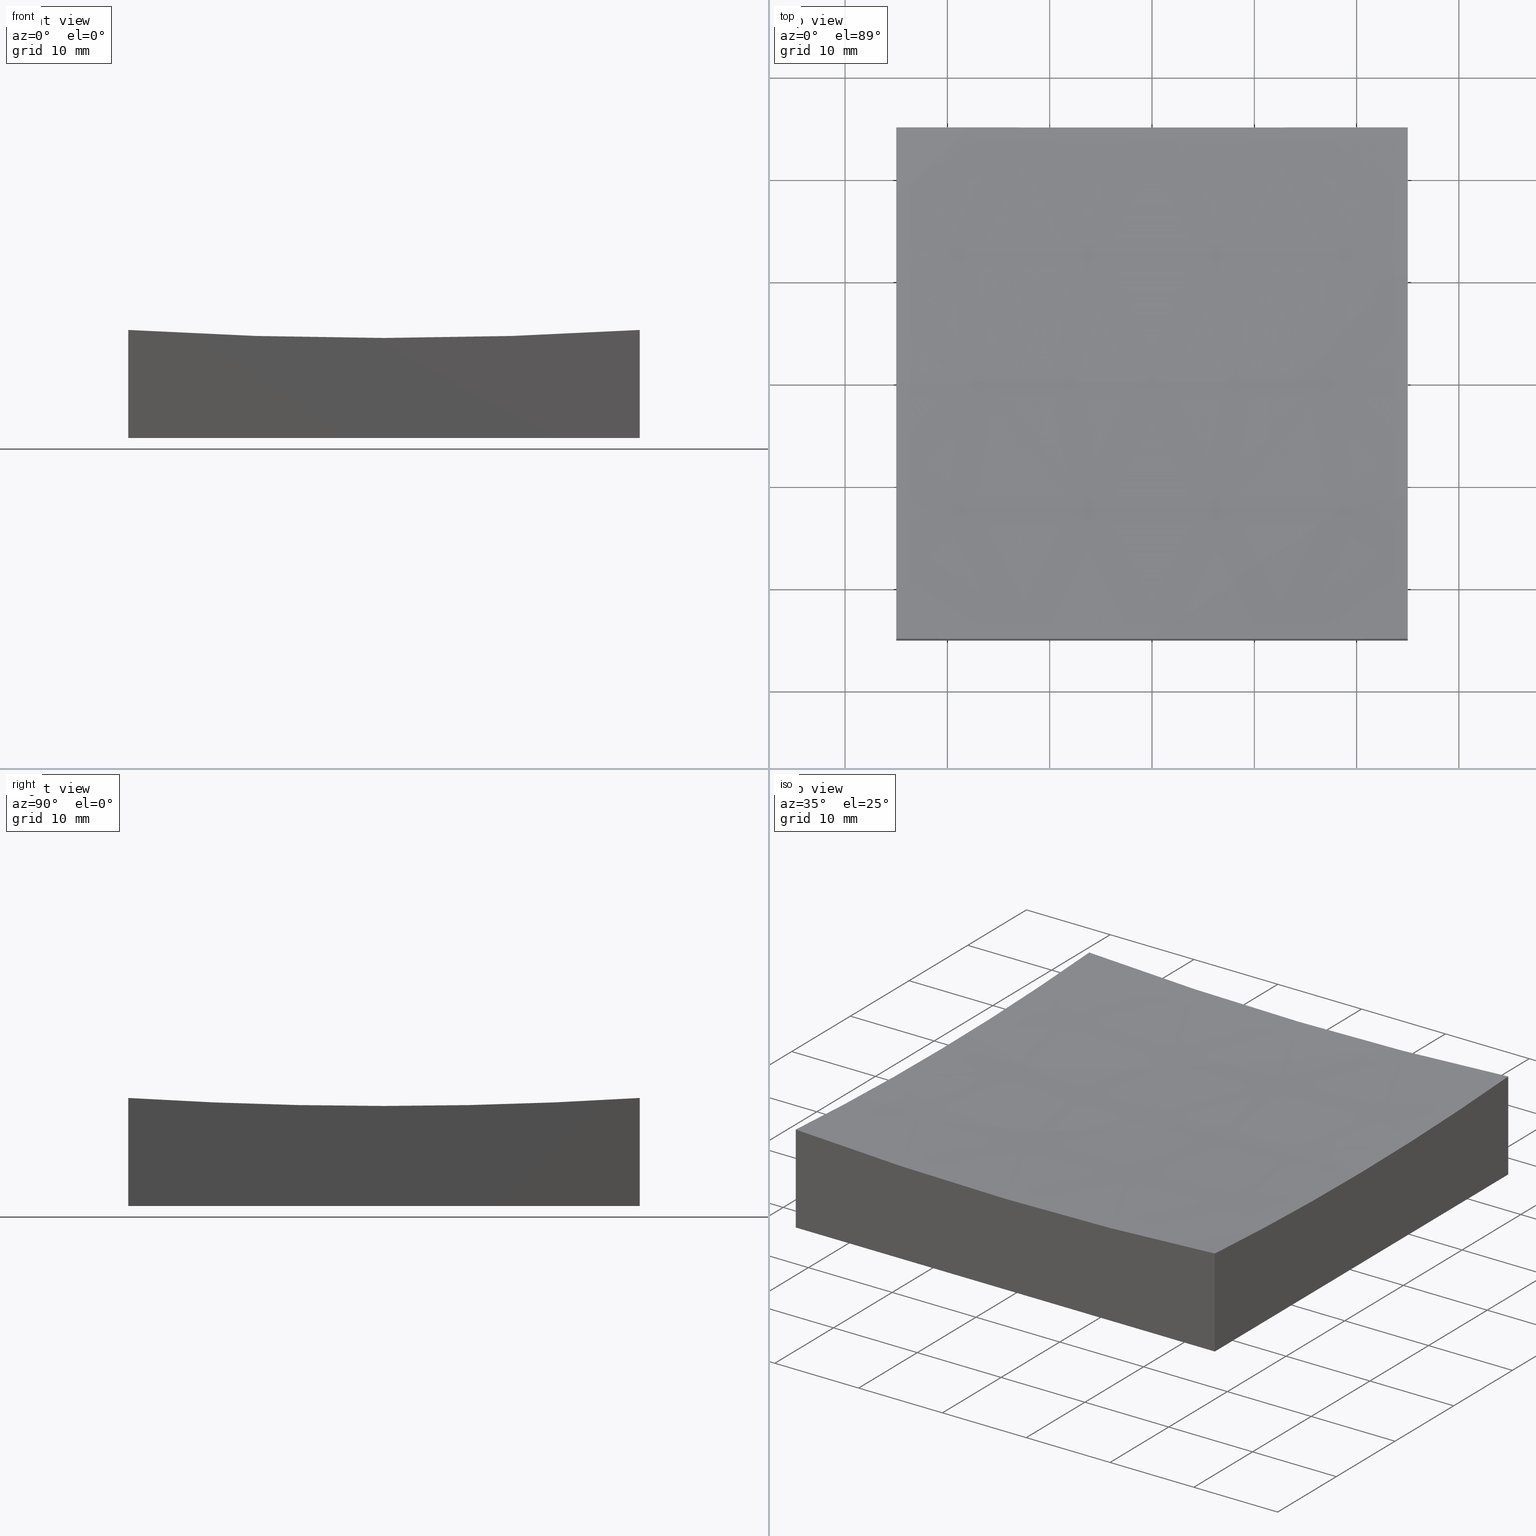
[diagram: canonical four-view strip — front | top / right | iso, engineering-drawing reading convention]
A machine part, canonical four-view strip (front | top / right | iso — engineering-drawing reading convention). The complete STEP part file that produces these views, byte-faithful:
ISO-10303-21;
HEADER;
FILE_DESCRIPTION (( 'STEP AP214' ),
    '1' );
FILE_NAME ('270054.STEP',
    '2020-06-08T03:53:25',
    ( '' ),
    ( '' ),
    'SwSTEP 2.0',
    'SolidWorks 2019',
    '' );
FILE_SCHEMA (( 'AUTOMOTIVE_DESIGN' ));
ENDSEC;

DATA;
#1 = ORIENTED_EDGE ( 'NONE', *, *, #243, .F. ) ;
#2 = ORIENTED_EDGE ( 'NONE', *, *, #15, .F. ) ;
#3 = ORIENTED_EDGE ( 'NONE', *, *, #105, .F. ) ;
#4 = MECHANICAL_DESIGN_GEOMETRIC_PRESENTATION_REPRESENTATION (  '', ( #143 ), #214 ) ;
#5 = CARTESIAN_POINT ( 'NONE',  ( -25.00000000000000355, -1.734723475976811039E-15, 409.0000000000000568 ) ) ;
#6 = DIRECTION ( 'NONE',  ( 1.000000000000000000, 6.938893903907228378E-17, -0.0000000000000000000 ) ) ;
#7 = FACE_OUTER_BOUND ( 'NONE', #158, .T. ) ;
#8 = LINE ( 'NONE', #224, #25 ) ;
#9 = ADVANCED_FACE ( 'NONE', ( #120 ), #84, .T. ) ;
#10 = PLANE ( 'NONE',  #208 ) ;
#11 = SURFACE_SIDE_STYLE ('',( #192 ) ) ;
#12 =( LENGTH_UNIT ( ) NAMED_UNIT ( * ) SI_UNIT ( .MILLI., .METRE. ) );
#13 = VECTOR ( 'NONE', #109, 1000.000000000000000 ) ;
#14 =( NAMED_UNIT ( * ) SI_UNIT ( $, .STERADIAN. ) SOLID_ANGLE_UNIT ( ) );
#15 = EDGE_CURVE ( 'NONE', #101, #199, #18, .T. ) ;
#16 = ORIENTED_EDGE ( 'NONE', *, *, #179, .F. ) ;
#17 = ORIENTED_EDGE ( 'NONE', *, *, #31, .F. ) ;
#18 = LINE ( 'NONE', #67, #57 ) ;
#19 = ORIENTED_EDGE ( 'NONE', *, *, #81, .T. ) ;
#20 = ORIENTED_EDGE ( 'NONE', *, *, #76, .T. ) ;
#21 = FACE_OUTER_BOUND ( 'NONE', #162, .T. ) ;
#22 = ADVANCED_FACE ( 'NONE', ( #142 ), #107, .F. ) ;
#23 = CARTESIAN_POINT ( 'NONE',  ( 24.99999999999999645, 24.99999999999999645, 10.56556373726935760 ) ) ;
#24 = DIRECTION ( 'NONE',  ( -6.952486265422993012E-17, 1.000000000000000000, 0.0000000000000000000 ) ) ;
#25 = VECTOR ( 'NONE', #242, 1000.000000000000000 ) ;
#26 = CARTESIAN_POINT ( 'NONE',  ( 9.319482020284216011E-14, 0.0000000000000000000, 9.000000000000063949 ) ) ;
#27 = EDGE_CURVE ( 'NONE', #66, #63, #72, .T. ) ;
#28 = CARTESIAN_POINT ( 'NONE',  ( 5.008805408512674501E-14, 0.0000000000000000000, 409.0000000000000568 ) ) ;
#29 = AXIS2_PLACEMENT_3D ( 'NONE', #28, #166, #111 ) ;
#30 = DIRECTION ( 'NONE',  ( -0.0000000000000000000, -0.0000000000000000000, -1.000000000000000000 ) ) ;
#31 = EDGE_CURVE ( 'NONE', #181, #60, #99, .T. ) ;
#32 = AXIS2_PLACEMENT_3D ( 'NONE', #108, #6, #24 ) ;
#33 = CARTESIAN_POINT ( 'NONE',  ( -25.00000000000000000, -25.00000000000000711, 50.00000000000000000 ) ) ;
#34 = PRODUCT_RELATED_PRODUCT_CATEGORY ( 'part', '', ( #114 ) ) ;
#35 = APPLICATION_CONTEXT ( 'automotive_design' ) ;
#36 = ORIENTED_EDGE ( 'NONE', *, *, #179, .T. ) ;
#37 = PRODUCT_DEFINITION_SHAPE ( 'NONE', 'NONE',  #85 ) ;
#38 = CARTESIAN_POINT ( 'NONE',  ( 0.0000000000000000000, 0.0000000000000000000, 0.0000000000000000000 ) ) ;
#39 = AXIS2_PLACEMENT_3D ( 'NONE', #124, #201, #183 ) ;
#40 = ORIENTED_EDGE ( 'NONE', *, *, #200, .F. ) ;
#41 = SHAPE_DEFINITION_REPRESENTATION ( #37, #92 ) ;
#42 = ORIENTED_EDGE ( 'NONE', *, *, #134, .T. ) ;
#43 = EDGE_LOOP ( 'NONE', ( #80, #19, #178, #16 ) ) ;
#44 = CARTESIAN_POINT ( 'NONE',  ( 24.99999999999999645, 24.99999999999999645, 0.0000000000000000000 ) ) ;
#45 = CARTESIAN_POINT ( 'NONE',  ( 24.99999999999999645, 1.734723475976803545E-15, 409.0000000000000568 ) ) ;
#46 = DIRECTION ( 'NONE',  ( 0.0000000000000000000, 0.0000000000000000000, -1.000000000000000000 ) ) ;
#47 = AXIS2_PLACEMENT_3D ( 'NONE', #49, #90, #207 ) ;
#48 = CARTESIAN_POINT ( 'NONE',  ( -25.00000000000000355, 24.99999999999999645, 0.0000000000000000000 ) ) ;
#49 = CARTESIAN_POINT ( 'NONE',  ( 5.008805408512674501E-14, 0.0000000000000000000, 409.0000000000000568 ) ) ;
#50 =( NAMED_UNIT ( * ) PLANE_ANGLE_UNIT ( ) SI_UNIT ( $, .RADIAN. ) );
#51 = AXIS2_PLACEMENT_3D ( 'NONE', #62, #103, #232 ) ;
#52 =( NAMED_UNIT ( * ) SI_UNIT ( $, .STERADIAN. ) SOLID_ANGLE_UNIT ( ) );
#53 = ADVANCED_FACE ( 'NONE', ( #21 ), #131, .F. ) ;
#54 = FACE_OUTER_BOUND ( 'NONE', #177, .T. ) ;
#55 = LINE ( 'NONE', #33, #98 ) ;
#56 = STYLED_ITEM ( 'NONE', ( #75 ), #196 ) ;
#57 = VECTOR ( 'NONE', #119, 1000.000000000000000 ) ;
#58 = FILL_AREA_STYLE_COLOUR ( '', #237 ) ;
#59 = APPLICATION_PROTOCOL_DEFINITION ( 'draft international standard', 'automotive_design', 1998, #93 ) ;
#60 = VERTEX_POINT ( 'NONE', #202 ) ;
#61 = ORIENTED_EDGE ( 'NONE', *, *, #27, .T. ) ;
#62 = CARTESIAN_POINT ( 'NONE',  ( 0.0000000000000000000, 0.0000000000000000000, 0.0000000000000000000 ) ) ;
#63 = VERTEX_POINT ( 'NONE', #149 ) ;
#64 = AXIS2_PLACEMENT_3D ( 'NONE', #45, #125, #185 ) ;
#65 = PRODUCT_CONTEXT ( 'NONE', #35, 'mechanical' ) ;
#66 = VERTEX_POINT ( 'NONE', #23 ) ;
#67 = CARTESIAN_POINT ( 'NONE',  ( -25.00000000000000355, 24.99999999999999645, 50.00000000000000000 ) ) ;
#68 = DIRECTION ( 'NONE',  ( 1.000000000000000000, 6.938893903907228378E-17, -0.0000000000000000000 ) ) ;
#69 = DIRECTION ( 'NONE',  ( 0.0000000000000000000, -0.0000000000000000000, 1.000000000000000000 ) ) ;
#70 = DIRECTION ( 'NONE',  ( 0.0000000000000000000, -1.000000000000000000, 0.0000000000000000000 ) ) ;
#71 = ADVANCED_FACE ( 'NONE', ( #240 ), #145, .F. ) ;
#72 = LINE ( 'NONE', #190, #211 ) ;
#73 = DIRECTION ( 'NONE',  ( 0.0000000000000000000, 1.000000000000000000, 0.0000000000000000000 ) ) ;
#74 = CARTESIAN_POINT ( 'NONE',  ( -25.00000000000000000, -25.00000000000000711, 50.00000000000000000 ) ) ;
#75 = PRESENTATION_STYLE_ASSIGNMENT (( #115 ) ) ;
#76 = EDGE_CURVE ( 'NONE', #60, #101, #147, .T. ) ;
#77 = CARTESIAN_POINT ( 'NONE',  ( 24.99999999999999645, 24.99999999999999645, 50.00000000000000000 ) ) ;
#78 = DIRECTION ( 'NONE',  ( -6.938893903907228378E-17, 1.000000000000000000, 0.0000000000000000000 ) ) ;
#79 = VECTOR ( 'NONE', #169, 1000.000000000000000 ) ;
#80 = ORIENTED_EDGE ( 'NONE', *, *, #200, .T. ) ;
#81 = EDGE_CURVE ( 'NONE', #63, #139, #144, .T. ) ;
#82 = ORIENTED_EDGE ( 'NONE', *, *, #15, .T. ) ;
#83 =( NAMED_UNIT ( * ) PLANE_ANGLE_UNIT ( ) SI_UNIT ( $, .RADIAN. ) );
#84 = PLANE ( 'NONE',  #138 ) ;
#85 = PRODUCT_DEFINITION ( 'δ֪', '', #118, #205 ) ;
#86 = CARTESIAN_POINT ( 'NONE',  ( 25.00000000000000000, -25.00000000000000711, 0.0000000000000000000 ) ) ;
#87 = CARTESIAN_POINT ( 'NONE',  ( 5.008805408512674501E-14, 0.0000000000000000000, 409.0000000000000568 ) ) ;
#88 = CARTESIAN_POINT ( 'NONE',  ( 5.008805408512674501E-14, -25.00000000000000711, 409.0000000000000568 ) ) ;
#89 = MECHANICAL_DESIGN_GEOMETRIC_PRESENTATION_REPRESENTATION (  '', ( #56 ), #132 ) ;
#90 = DIRECTION ( 'NONE',  ( -0.0000000000000000000, 1.000000000000000000, 0.0000000000000000000 ) ) ;
#91 = DIRECTION ( 'NONE',  ( -0.0000000000000000000, -0.0000000000000000000, -1.000000000000000000 ) ) ;
#92 = ADVANCED_BREP_SHAPE_REPRESENTATION ( '270054', ( #196, #51 ), #164 ) ;
#93 = APPLICATION_CONTEXT ( 'automotive_design' ) ;
#94 = APPLICATION_PROTOCOL_DEFINITION ( 'draft international standard', 'automotive_design', 1998, #35 ) ;
#95 = SURFACE_STYLE_USAGE ( .BOTH. , #11 ) ;
#96 = CIRCLE ( 'NONE', #64, 399.2179855667827724 ) ;
#97 = FILL_AREA_STYLE ('',( #58 ) ) ;
#98 = VECTOR ( 'NONE', #30, 1000.000000000000000 ) ;
#99 = CIRCLE ( 'NONE', #126, 399.9999999999999432 ) ;
#100 = ORIENTED_EDGE ( 'NONE', *, *, #243, .T. ) ;
#101 = VERTEX_POINT ( 'NONE', #220 ) ;
#102 = ORIENTED_EDGE ( 'NONE', *, *, #81, .F. ) ;
#103 = DIRECTION ( 'NONE',  ( 0.0000000000000000000, 0.0000000000000000000, 1.000000000000000000 ) ) ;
#104 = VERTEX_POINT ( 'NONE', #148 ) ;
#105 = EDGE_CURVE ( 'NONE', #66, #101, #161, .T. ) ;
#106 = ORIENTED_EDGE ( 'NONE', *, *, #175, .F. ) ;
#107 = SPHERICAL_SURFACE ( 'NONE', #29, 399.9999999999999432 ) ;
#108 = CARTESIAN_POINT ( 'NONE',  ( -25.00000000000000355, -1.734723475976811039E-15, 409.0000000000000568 ) ) ;
#109 = DIRECTION ( 'NONE',  ( 6.938893903907228378E-17, -1.000000000000000000, 0.0000000000000000000 ) ) ;
#110 = DIRECTION ( 'NONE',  ( -1.000000000000000000, 1.224646799147353207E-16, 0.0000000000000000000 ) ) ;
#111 = DIRECTION ( 'NONE',  ( 1.000000000000000000, 0.0000000000000000000, 0.0000000000000000000 ) ) ;
#112 = CARTESIAN_POINT ( 'NONE',  ( 24.99999999999999645, 1.734723475976803545E-15, 409.0000000000000568 ) ) ;
#113 = CLOSED_SHELL ( 'NONE', ( #22, #150, #71, #231, #187, #9, #53 ) ) ;
#114 = PRODUCT ( '270054', '270054', '', ( #65 ) ) ;
#115 = SURFACE_STYLE_USAGE ( .BOTH. , #228 ) ;
#116 = LINE ( 'NONE', #210, #79 ) ;
#117 = VERTEX_POINT ( 'NONE', #222 ) ;
#118 = PRODUCT_DEFINITION_FORMATION_WITH_SPECIFIED_SOURCE ( '�κ�', '', #114, .NOT_KNOWN. ) ;
#119 = DIRECTION ( 'NONE',  ( -0.0000000000000000000, -0.0000000000000000000, -1.000000000000000000 ) ) ;
#120 = FACE_OUTER_BOUND ( 'NONE', #43, .T. ) ;
#121 = VECTOR ( 'NONE', #91, 1000.000000000000000 ) ;
#122 = EDGE_LOOP ( 'NONE', ( #1, #180, #20, #82, #36 ) ) ;
#123 = ORIENTED_EDGE ( 'NONE', *, *, #175, .T. ) ;
#124 = CARTESIAN_POINT ( 'NONE',  ( 5.008805408512674501E-14, 24.99999999999999645, 409.0000000000000568 ) ) ;
#125 = DIRECTION ( 'NONE',  ( 1.000000000000000000, 6.938893903907228378E-17, -0.0000000000000000000 ) ) ;
#126 = AXIS2_PLACEMENT_3D ( 'NONE', #146, #225, #110 ) ;
#127 = EDGE_CURVE ( 'NONE', #104, #60, #250, .T. ) ;
#128 = DIRECTION ( 'NONE',  ( -6.938893903907228378E-17, 1.000000000000000000, 0.0000000000000000000 ) ) ;
#129 = AXIS2_PLACEMENT_3D ( 'NONE', #87, #70, #46 ) ;
#130 = DIRECTION ( 'NONE',  ( 0.0000000000000000000, 0.0000000000000000000, 1.000000000000000000 ) ) ;
#131 = SPHERICAL_SURFACE ( 'NONE', #47, 399.9999999999999432 ) ;
#132 =( GEOMETRIC_REPRESENTATION_CONTEXT ( 3 ) GLOBAL_UNCERTAINTY_ASSIGNED_CONTEXT ( ( #226 ) ) GLOBAL_UNIT_ASSIGNED_CONTEXT ( ( #135, #195, #52 ) ) REPRESENTATION_CONTEXT ( 'NONE', 'WORKASPACE' ) );
#133 = CARTESIAN_POINT ( 'NONE',  ( -25.00000000000000355, 24.99999999999999645, 0.0000000000000000000 ) ) ;
#134 = EDGE_CURVE ( 'NONE', #141, #139, #8, .T. ) ;
#135 =( LENGTH_UNIT ( ) NAMED_UNIT ( * ) SI_UNIT ( .MILLI., .METRE. ) );
#136 = ORIENTED_EDGE ( 'NONE', *, *, #127, .F. ) ;
#137 = ORIENTED_EDGE ( 'NONE', *, *, #76, .F. ) ;
#138 = AXIS2_PLACEMENT_3D ( 'NONE', #38, #219, #197 ) ;
#139 = VERTEX_POINT ( 'NONE', #86 ) ;
#140 = AXIS2_PLACEMENT_3D ( 'NONE', #5, #186, #223 ) ;
#141 = VERTEX_POINT ( 'NONE', #168 ) ;
#142 = FACE_OUTER_BOUND ( 'NONE', #217, .T. ) ;
#143 = STYLED_ITEM ( 'NONE', ( #249 ), #92 ) ;
#144 = LINE ( 'NONE', #44, #13 ) ;
#145 = PLANE ( 'NONE',  #194 ) ;
#146 = CARTESIAN_POINT ( 'NONE',  ( 5.008805408512674501E-14, 0.0000000000000000000, 409.0000000000000568 ) ) ;
#147 = CIRCLE ( 'NONE', #32, 399.2179855667827155 ) ;
#148 = CARTESIAN_POINT ( 'NONE',  ( -25.00000000000000000, -25.00000000000000711, 10.56556373726935760 ) ) ;
#149 = CARTESIAN_POINT ( 'NONE',  ( 24.99999999999999645, 24.99999999999999645, 0.0000000000000000000 ) ) ;
#150 = ADVANCED_FACE ( 'NONE', ( #7 ), #167, .T. ) ;
#151 = SURFACE_STYLE_FILL_AREA ( #97 ) ;
#152 = COLOUR_RGB ( '',1.000000000000000000, 1.000000000000000000, 1.000000000000000000 ) ;
#153 = CARTESIAN_POINT ( 'NONE',  ( 24.99999999999999645, -9.629649721936179265E-32, 9.782014433217273819 ) ) ;
#154 = DIRECTION ( 'NONE',  ( -6.952486265422991780E-17, 1.000000000000000000, 0.0000000000000000000 ) ) ;
#155 = ORIENTED_EDGE ( 'NONE', *, *, #171, .F. ) ;
#156 = ORIENTED_EDGE ( 'NONE', *, *, #159, .T. ) ;
#157 =( LENGTH_UNIT ( ) NAMED_UNIT ( * ) SI_UNIT ( .MILLI., .METRE. ) );
#158 = EDGE_LOOP ( 'NONE', ( #3, #61, #40, #2 ) ) ;
#159 = EDGE_CURVE ( 'NONE', #117, #230, #96, .T. ) ;
#160 = ORIENTED_EDGE ( 'NONE', *, *, #216, .F. ) ;
#161 = CIRCLE ( 'NONE', #39, 399.2179855667827724 ) ;
#162 = EDGE_LOOP ( 'NONE', ( #17, #198, #176, #234, #137 ) ) ;
#163 = DIRECTION ( 'NONE',  ( -0.0000000000000000000, -0.0000000000000000000, -1.000000000000000000 ) ) ;
#164 =( GEOMETRIC_REPRESENTATION_CONTEXT ( 3 ) GLOBAL_UNCERTAINTY_ASSIGNED_CONTEXT ( ( #213 ) ) GLOBAL_UNIT_ASSIGNED_CONTEXT ( ( #12, #50, #14 ) ) REPRESENTATION_CONTEXT ( 'NONE', 'WORKASPACE' ) );
#165 = CARTESIAN_POINT ( 'NONE',  ( -25.00000000000000355, 24.99999999999999645, 50.00000000000000000 ) ) ;
#166 = DIRECTION ( 'NONE',  ( -0.0000000000000000000, 1.000000000000000000, 0.0000000000000000000 ) ) ;
#167 = PLANE ( 'NONE',  #173 ) ;
#168 = CARTESIAN_POINT ( 'NONE',  ( -25.00000000000000000, -25.00000000000000711, 0.0000000000000000000 ) ) ;
#169 = DIRECTION ( 'NONE',  ( 1.000000000000000000, 0.0000000000000000000, 0.0000000000000000000 ) ) ;
#170 = DIRECTION ( 'NONE',  ( 1.000000000000000000, 6.938893903907228378E-17, -0.0000000000000000000 ) ) ;
#171 = EDGE_CURVE ( 'NONE', #181, #230, #235, .T. ) ;
#172 = DIRECTION ( 'NONE',  ( 0.0000000000000000000, 1.000000000000000000, 0.0000000000000000000 ) ) ;
#173 = AXIS2_PLACEMENT_3D ( 'NONE', #165, #241, #69 ) ;
#174 = CIRCLE ( 'NONE', #206, 399.2179855667827724 ) ;
#175 = EDGE_CURVE ( 'NONE', #117, #104, #174, .T. ) ;
#176 = ORIENTED_EDGE ( 'NONE', *, *, #216, .T. ) ;
#177 = EDGE_LOOP ( 'NONE', ( #238, #215, #102, #233, #160 ) ) ;
#178 = ORIENTED_EDGE ( 'NONE', *, *, #134, .F. ) ;
#179 = EDGE_CURVE ( 'NONE', #199, #141, #245, .T. ) ;
#180 = ORIENTED_EDGE ( 'NONE', *, *, #127, .T. ) ;
#181 = VERTEX_POINT ( 'NONE', #26 ) ;
#182 = EDGE_CURVE ( 'NONE', #117, #139, #189, .T. ) ;
#183 = DIRECTION ( 'NONE',  ( 0.0000000000000000000, 0.0000000000000000000, 1.000000000000000000 ) ) ;
#184 = CIRCLE ( 'NONE', #218, 399.2179855667827724 ) ;
#185 = DIRECTION ( 'NONE',  ( -6.952486265422991780E-17, 1.000000000000000000, 0.0000000000000000000 ) ) ;
#186 = DIRECTION ( 'NONE',  ( 1.000000000000000000, 6.938893903907228378E-17, -0.0000000000000000000 ) ) ;
#187 = ADVANCED_FACE ( 'NONE', ( #54 ), #191, .T. ) ;
#188 = AXIS2_PLACEMENT_3D ( 'NONE', #77, #170, #78 ) ;
#189 = LINE ( 'NONE', #246, #121 ) ;
#190 = CARTESIAN_POINT ( 'NONE',  ( 24.99999999999999645, 24.99999999999999645, 50.00000000000000000 ) ) ;
#191 = PLANE ( 'NONE',  #188 ) ;
#192 = SURFACE_STYLE_FILL_AREA ( #248 ) ;
#193 = DIRECTION ( 'NONE',  ( 0.0000000000000000000, -0.0000000000000000000, 1.000000000000000000 ) ) ;
#194 = AXIS2_PLACEMENT_3D ( 'NONE', #203, #68, #128 ) ;
#195 =( NAMED_UNIT ( * ) PLANE_ANGLE_UNIT ( ) SI_UNIT ( $, .RADIAN. ) );
#196 = MANIFOLD_SOLID_BREP ( '�г�-��ת2', #113 ) ;
#197 = DIRECTION ( 'NONE',  ( -1.000000000000000000, 0.0000000000000000000, -0.0000000000000000000 ) ) ;
#198 = ORIENTED_EDGE ( 'NONE', *, *, #171, .T. ) ;
#199 = VERTEX_POINT ( 'NONE', #133 ) ;
#200 = EDGE_CURVE ( 'NONE', #199, #63, #116, .T. ) ;
#201 = DIRECTION ( 'NONE',  ( 0.0000000000000000000, 1.000000000000000000, 0.0000000000000000000 ) ) ;
#202 = CARTESIAN_POINT ( 'NONE',  ( -25.00000000000000355, 3.061616997868391720E-15, 9.782014433217300464 ) ) ;
#203 = CARTESIAN_POINT ( 'NONE',  ( -25.00000000000000355, 24.99999999999999645, 50.00000000000000000 ) ) ;
#204 = DIRECTION ( 'NONE',  ( 6.938893903907228378E-17, -1.000000000000000000, 0.0000000000000000000 ) ) ;
#205 = PRODUCT_DEFINITION_CONTEXT ( 'detailed design', #93, 'design' ) ;
#206 = AXIS2_PLACEMENT_3D ( 'NONE', #88, #73, #130 ) ;
#207 = DIRECTION ( 'NONE',  ( 1.000000000000000000, 0.0000000000000000000, 0.0000000000000000000 ) ) ;
#208 = AXIS2_PLACEMENT_3D ( 'NONE', #74, #172, #193 ) ;
#209 = FILL_AREA_STYLE_COLOUR ( '', #152 ) ;
#210 = CARTESIAN_POINT ( 'NONE',  ( -25.00000000000000355, 24.99999999999999645, 0.0000000000000000000 ) ) ;
#211 = VECTOR ( 'NONE', #163, 1000.000000000000000 ) ;
#212 = ORIENTED_EDGE ( 'NONE', *, *, #182, .F. ) ;
#213 = UNCERTAINTY_MEASURE_WITH_UNIT (LENGTH_MEASURE( 1.000000000000000082E-05 ), #12, 'distance_accuracy_value', 'NONE');
#214 =( GEOMETRIC_REPRESENTATION_CONTEXT ( 3 ) GLOBAL_UNCERTAINTY_ASSIGNED_CONTEXT ( ( #221 ) ) GLOBAL_UNIT_ASSIGNED_CONTEXT ( ( #157, #83, #236 ) ) REPRESENTATION_CONTEXT ( 'NONE', 'WORKASPACE' ) );
#215 = ORIENTED_EDGE ( 'NONE', *, *, #182, .T. ) ;
#216 = EDGE_CURVE ( 'NONE', #230, #66, #184, .T. ) ;
#217 = EDGE_LOOP ( 'NONE', ( #155, #229, #136, #106, #156 ) ) ;
#218 = AXIS2_PLACEMENT_3D ( 'NONE', #112, #247, #154 ) ;
#219 = DIRECTION ( 'NONE',  ( 0.0000000000000000000, 0.0000000000000000000, -1.000000000000000000 ) ) ;
#220 = CARTESIAN_POINT ( 'NONE',  ( -25.00000000000000711, 24.99999999999999645, 10.56556373726941267 ) ) ;
#221 = UNCERTAINTY_MEASURE_WITH_UNIT (LENGTH_MEASURE( 1.000000000000000082E-05 ), #157, 'distance_accuracy_value', 'NONE');
#222 = CARTESIAN_POINT ( 'NONE',  ( 25.00000000000000000, -25.00000000000000711, 10.56556373726935760 ) ) ;
#223 = DIRECTION ( 'NONE',  ( -6.952486265422993012E-17, 1.000000000000000000, 0.0000000000000000000 ) ) ;
#224 = CARTESIAN_POINT ( 'NONE',  ( -25.00000000000000000, -25.00000000000000711, 0.0000000000000000000 ) ) ;
#225 = DIRECTION ( 'NONE',  ( 1.224646799147353207E-16, 1.000000000000000000, 5.698841873604149506E-33 ) ) ;
#226 = UNCERTAINTY_MEASURE_WITH_UNIT (LENGTH_MEASURE( 1.000000000000000082E-05 ), #135, 'distance_accuracy_value', 'NONE');
#227 = VECTOR ( 'NONE', #204, 1000.000000000000000 ) ;
#228 = SURFACE_SIDE_STYLE ('',( #151 ) ) ;
#229 = ORIENTED_EDGE ( 'NONE', *, *, #31, .T. ) ;
#230 = VERTEX_POINT ( 'NONE', #153 ) ;
#231 = ADVANCED_FACE ( 'NONE', ( #251 ), #10, .F. ) ;
#232 = DIRECTION ( 'NONE',  ( 1.000000000000000000, 0.0000000000000000000, 0.0000000000000000000 ) ) ;
#233 = ORIENTED_EDGE ( 'NONE', *, *, #27, .F. ) ;
#234 = ORIENTED_EDGE ( 'NONE', *, *, #105, .T. ) ;
#235 = CIRCLE ( 'NONE', #129, 399.9999999999999432 ) ;
#236 =( NAMED_UNIT ( * ) SI_UNIT ( $, .STERADIAN. ) SOLID_ANGLE_UNIT ( ) );
#237 = COLOUR_RGB ( '',1.000000000000000000, 1.000000000000000000, 1.000000000000000000 ) ;
#238 = ORIENTED_EDGE ( 'NONE', *, *, #159, .F. ) ;
#239 = PRESENTATION_LAYER_ASSIGNMENT (  '', '', ( #143 ) ) ;
#240 = FACE_OUTER_BOUND ( 'NONE', #122, .T. ) ;
#241 = DIRECTION ( 'NONE',  ( 0.0000000000000000000, 1.000000000000000000, 0.0000000000000000000 ) ) ;
#242 = DIRECTION ( 'NONE',  ( 1.000000000000000000, 0.0000000000000000000, 0.0000000000000000000 ) ) ;
#243 = EDGE_CURVE ( 'NONE', #104, #141, #55, .T. ) ;
#244 = PRESENTATION_LAYER_ASSIGNMENT (  '', '', ( #56 ) ) ;
#245 = LINE ( 'NONE', #48, #227 ) ;
#246 = CARTESIAN_POINT ( 'NONE',  ( 25.00000000000000000, -25.00000000000000711, 50.00000000000000000 ) ) ;
#247 = DIRECTION ( 'NONE',  ( 1.000000000000000000, 6.938893903907228378E-17, -0.0000000000000000000 ) ) ;
#248 = FILL_AREA_STYLE ('',( #209 ) ) ;
#249 = PRESENTATION_STYLE_ASSIGNMENT (( #95 ) ) ;
#250 = CIRCLE ( 'NONE', #140, 399.2179855667827155 ) ;
#251 = FACE_OUTER_BOUND ( 'NONE', #252, .T. ) ;
#252 = EDGE_LOOP ( 'NONE', ( #212, #123, #100, #42 ) ) ;
ENDSEC;
END-ISO-10303-21;
